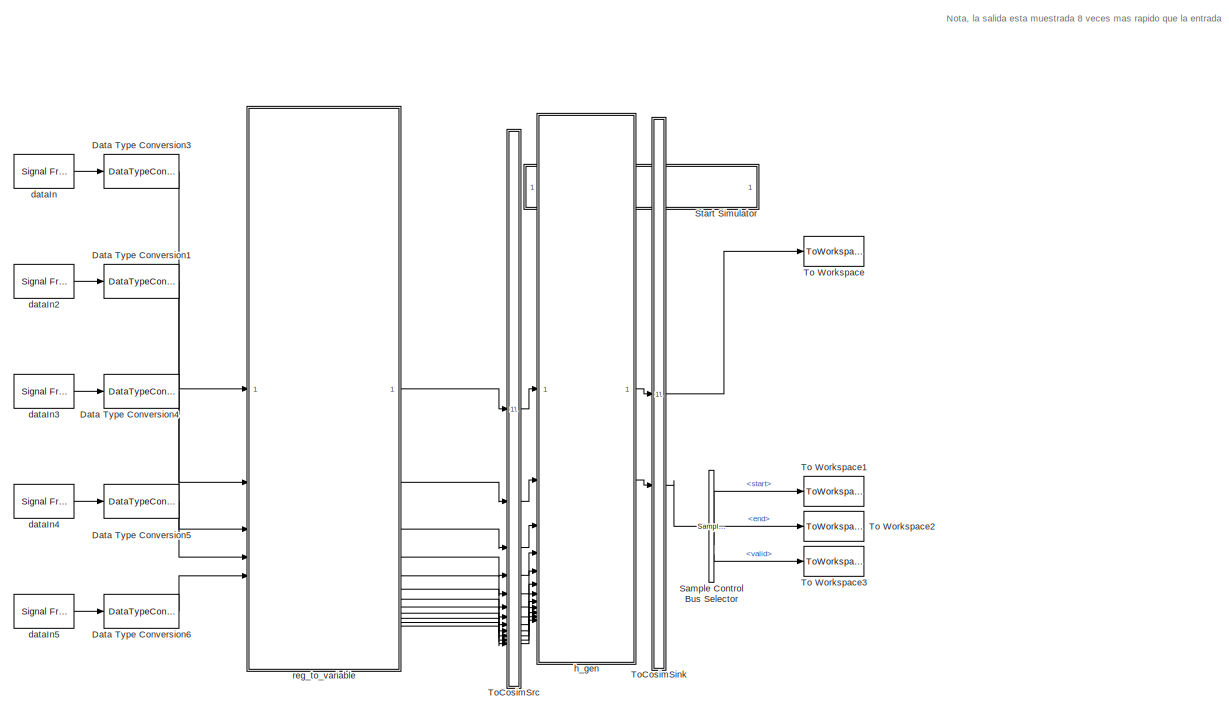
[diagram: root canvas - part 1/2, full width, top band]
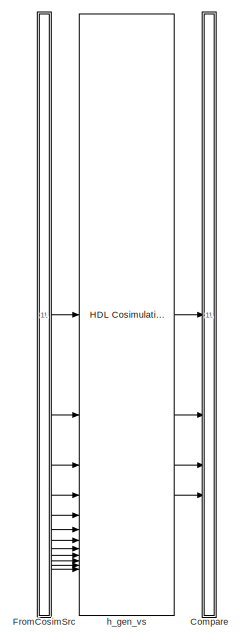
[diagram: root canvas - part 2/2, bottom center region]
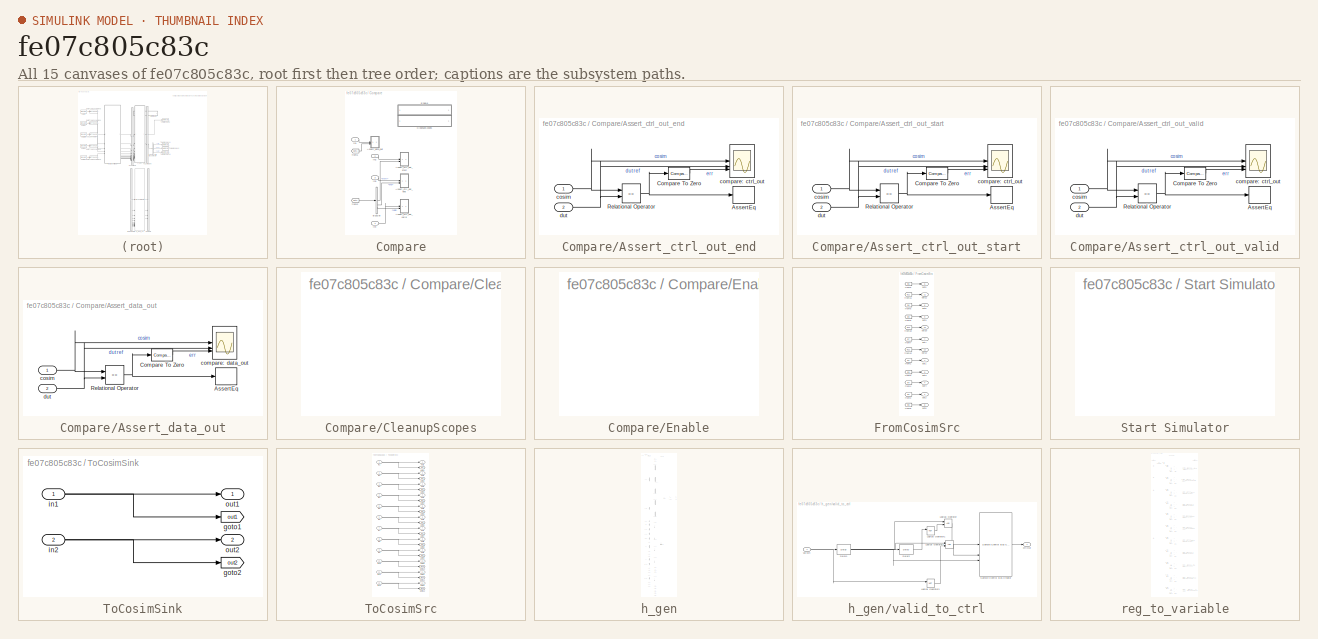
[diagram: thumbnail index - all 15 canvases of the model, root first then tree order]
MODEL slx_fe07c805c83c
KIND model
CONFIG AbsTol = auto
CONFIG EnableMultiTasking = off
CONFIG FixedStep = auto
CONFIG MaxStep = auto
CONFIG MinStep = auto
CONFIG RelTol = 1e-3
CONFIG SampleTimeConstraint = Unconstrained
CONFIG SolverName = VariableStepAuto
CONFIG StartTime = 0.0
CONFIG StopTime = 10.0
BLOCK [SubSystem] Compare
BLOCK [SubSystem] Compare/Assert_ctrl_out_end
  LibrarySourceBlock = hdlmdlgenlib/AssertEq
BLOCK [Assertion] Compare/Assert_ctrl_out_end/AssertEq
BLOCK [Reference] Compare/Assert_ctrl_out_end/Compare To Zero  REF=simulink/Logic and Bit
Operations/Compare
To Zero
  SourceBlock = simulink/Logic and Bit\nOperations/Compare\nTo Zero
  SourceType = Compare To Zero
BLOCK [RelationalOperator] Compare/Assert_ctrl_out_end/Relational Operator
  InputSameDT = off
  Operator = ==
  OutDataTypeStr = boolean
BLOCK [Scope] Compare/Assert_ctrl_out_end/compare: ctrl_out
  Floating = off
  NumInputPorts = 3
  ScopeSpecificationString = Simulink.scopes.TimeScopeBlockCfg('CurrentConfiguration', extmgr.ConfigurationSet(extmgr.Configuration('Core','General UI',true,'MessageLogAutoOpenMode','for warn/fail messages','ShowCloseAll',true,'ShowBringAllForward',true),extmgr.Configuration('Core','Source UI',true,'PlaybackToolbar',true),extmgr.Configuration('Sources','WiredSimulink',true,'PointsPerSignal',50000,'DataLoggingDecimation','1','...<+3551ch>  <repeated x3 — deduplicated; at blocks: compare: ctrl_out, compare: data_out>
BLOCK [Inport] Compare/Assert_ctrl_out_end/cosim
BLOCK [Inport] Compare/Assert_ctrl_out_end/dut
  Port = 2
BLOCK [SubSystem] Compare/Assert_ctrl_out_start
  LibrarySourceBlock = hdlmdlgenlib/AssertEq
BLOCK [Assertion] Compare/Assert_ctrl_out_start/AssertEq
BLOCK [Reference] Compare/Assert_ctrl_out_start/Compare To Zero  REF=simulink/Logic and Bit
Operations/Compare
To Zero
  SourceBlock = simulink/Logic and Bit\nOperations/Compare\nTo Zero
  SourceType = Compare To Zero
BLOCK [RelationalOperator] Compare/Assert_ctrl_out_start/Relational Operator
  InputSameDT = off
  Operator = ==
  OutDataTypeStr = boolean
BLOCK [Scope] Compare/Assert_ctrl_out_start/compare: ctrl_out
  Floating = off
  NumInputPorts = 3
  ScopeSpecificationString = Simulink.scopes.TimeScopeBlockCfg('CurrentConfiguration', extmgr.ConfigurationSet(extmgr.Configuration('Core','General UI',true,'MessageLogAutoOpenMode','for warn/fail messages','ShowCloseAll',true,'ShowBringAllForward',true),extmgr.Configuration('Core','Source UI',true,'PlaybackToolbar',true),extmgr.Configuration('Sources','WiredSimulink',true,'PointsPerSignal',50000,'DataLoggingDecimation','1','...<+3577ch>
BLOCK [Inport] Compare/Assert_ctrl_out_start/cosim
BLOCK [Inport] Compare/Assert_ctrl_out_start/dut
  Port = 2
BLOCK [SubSystem] Compare/Assert_ctrl_out_valid
  LibrarySourceBlock = hdlmdlgenlib/AssertEq
BLOCK [Assertion] Compare/Assert_ctrl_out_valid/AssertEq
BLOCK [Reference] Compare/Assert_ctrl_out_valid/Compare To Zero  REF=simulink/Logic and Bit
Operations/Compare
To Zero
  SourceBlock = simulink/Logic and Bit\nOperations/Compare\nTo Zero
  SourceType = Compare To Zero
BLOCK [RelationalOperator] Compare/Assert_ctrl_out_valid/Relational Operator
  InputSameDT = off
  Operator = ==
  OutDataTypeStr = boolean
BLOCK [Scope] Compare/Assert_ctrl_out_valid/compare: ctrl_out
  Floating = off
  NumInputPorts = 3
BLOCK [Inport] Compare/Assert_ctrl_out_valid/cosim
BLOCK [Inport] Compare/Assert_ctrl_out_valid/dut
  Port = 2
BLOCK [SubSystem] Compare/Assert_data_out
  LibrarySourceBlock = hdlmdlgenlib/AssertEq
BLOCK [Assertion] Compare/Assert_data_out/AssertEq
BLOCK [Reference] Compare/Assert_data_out/Compare To Zero  REF=simulink/Logic and Bit
Operations/Compare
To Zero
  SourceBlock = simulink/Logic and Bit\nOperations/Compare\nTo Zero
  SourceType = Compare To Zero
BLOCK [RelationalOperator] Compare/Assert_data_out/Relational Operator
  InputSameDT = off
  Operator = ==
  OutDataTypeStr = boolean
BLOCK [Scope] Compare/Assert_data_out/compare: data_out
  Floating = off
  NumInputPorts = 3
BLOCK [Inport] Compare/Assert_data_out/cosim
BLOCK [Inport] Compare/Assert_data_out/dut
  Port = 2
BLOCK [BusSelector] Compare/BusSel
  OutputSignals = start,end,valid
BLOCK [SubSystem] Compare/CleanupScopes
  OpenFcn = blkName = gcb; %self block\nidx = regexp(blkName, '/CleanupScopes$', 'once');\nblkParent = blkName(1:idx-1);\nblks=find_system(blkParent, 'LookUnderMasks', 'all','blocktype', 'Scope');\nfor itr = 1:length(blks)\n	 hScopeCfg = get_param(blks{itr},'ScopeConfiguration');\n	 hScopeCfg.Visible = ~ hScopeCfg.Visible;\nend\ndrawnow;
BLOCK [SubSystem] Compare/Enable
  OpenFcn = blkName = gcb;\nidx = regexp(blkName, '/Enable$', 'once');\nblkParent = blkName(1:idx-1);\nblks=find_system(blkParent, 'LookUnderMasks', 'all','blocktype', 'Assertion');\ne = get_param(blks{1}, 'Enabled');\nif strcmp(e, 'on'), f= 'off';, else, f = 'on';, end\nfor ii=1:length(blks), set_param(blks{ii}, 'Enabled', f);, end\nset_param(gcb, 'MaskDisplay',['fprintf(message(''hdlcoder:cosim:vnl_dblclick_assert...<+47ch>
BLOCK [From] Compare/from1
  GotoTag = out1
  TagVisibility = global
BLOCK [From] Compare/from2
  GotoTag = out2
  TagVisibility = global
BLOCK [Inport] Compare/in1
BLOCK [Inport] Compare/in2
  Port = 2
BLOCK [Inport] Compare/in3
  Port = 3
BLOCK [Inport] Compare/in4
  Port = 4
BLOCK [DataTypeConversion] Data Type Conversion1
  OutDataTypeStr = uint32
  RndMeth = Floor
  SaturateOnIntegerOverflow = off
BLOCK [DataTypeConversion] Data Type Conversion3
  OutDataTypeStr = boolean
  RndMeth = Floor
  SaturateOnIntegerOverflow = off
BLOCK [DataTypeConversion] Data Type Conversion4
  OutDataTypeStr = uint32
  RndMeth = Floor
  SaturateOnIntegerOverflow = off
BLOCK [DataTypeConversion] Data Type Conversion5
  OutDataTypeStr = uint32
  RndMeth = Floor
  SaturateOnIntegerOverflow = off
BLOCK [DataTypeConversion] Data Type Conversion6
  OutDataTypeStr = uint32
  RndMeth = Floor
  SaturateOnIntegerOverflow = off
BLOCK [SubSystem] FromCosimSrc
BLOCK [From] FromCosimSrc/from1
  GotoTag = in1
  TagVisibility = global
BLOCK [From] FromCosimSrc/from10
  GotoTag = in10
  TagVisibility = global
BLOCK [From] FromCosimSrc/from11
  GotoTag = in11
  TagVisibility = global
BLOCK [From] FromCosimSrc/from12
  GotoTag = in12
  TagVisibility = global
BLOCK [From] FromCosimSrc/from2
  GotoTag = in2
  TagVisibility = global
BLOCK [From] FromCosimSrc/from3
  GotoTag = in3
  TagVisibility = global
BLOCK [From] FromCosimSrc/from4
  GotoTag = in4
  TagVisibility = global
BLOCK [From] FromCosimSrc/from5
  GotoTag = in5
  TagVisibility = global
BLOCK [From] FromCosimSrc/from6
  GotoTag = in6
  TagVisibility = global
BLOCK [From] FromCosimSrc/from7
  GotoTag = in7
  TagVisibility = global
BLOCK [From] FromCosimSrc/from8
  GotoTag = in8
  TagVisibility = global
BLOCK [From] FromCosimSrc/from9
  GotoTag = in9
  TagVisibility = global
BLOCK [Outport] FromCosimSrc/out1
BLOCK [Outport] FromCosimSrc/out10
  Port = 10
BLOCK [Outport] FromCosimSrc/out11
  Port = 11
BLOCK [Outport] FromCosimSrc/out12
  Port = 12
BLOCK [Outport] FromCosimSrc/out2
  Port = 2
BLOCK [Outport] FromCosimSrc/out3
  Port = 3
BLOCK [Outport] FromCosimSrc/out4
  Port = 4
BLOCK [Outport] FromCosimSrc/out5
  Port = 5
BLOCK [Outport] FromCosimSrc/out6
  Port = 6
BLOCK [Outport] FromCosimSrc/out7
  Port = 7
BLOCK [Outport] FromCosimSrc/out8
  Port = 8
BLOCK [Outport] FromCosimSrc/out9
  Port = 9
BLOCK [Reference] Sample Control Bus Selector  REF=whdlutilities/Sample Control
Bus Selector
  SourceBlock = whdlutilities/Sample Control\nBus Selector
BLOCK [SubSystem] Start Simulator
  OpenFcn = cosimDirName = pwd;\ncd 'hdl_prj/hdlsrc/HDLHeaderGen';\n[s,r] = system('vivado -mode batch -source gm_HDLHeaderGen_vs.tcl','-echo');\ncd (cosimDirName);\nclear cosimDirName;\nif s\n   error('Failed to create Vivado HDL design DLL using script gm_HDLHeaderGen_vs.tcl.');\nend
BLOCK [ToWorkspace] To Workspace
  MaxDataPoints = inf
  SampleTime = 1/(8*fs)
  Save2DSignal = 2-D array (concatenate along first dimension)
  VariableName = dataOut
BLOCK [ToWorkspace] To Workspace1
  MaxDataPoints = inf
  SampleTime = 1/(8*fs)
  Save2DSignal = 2-D array (concatenate along first dimension)
  VariableName = startOut
BLOCK [ToWorkspace] To Workspace2
  MaxDataPoints = inf
  SampleTime = 1/(8*fs)
  Save2DSignal = 2-D array (concatenate along first dimension)
  VariableName = endOut
BLOCK [ToWorkspace] To Workspace3
  MaxDataPoints = inf
  SampleTime = 1/(8*fs)
  Save2DSignal = 2-D array (concatenate along first dimension)
  VariableName = validOut
BLOCK [SubSystem] ToCosimSink
BLOCK [Goto] ToCosimSink/goto1
  GotoTag = out1
  TagVisibility = global
BLOCK [Goto] ToCosimSink/goto2
  GotoTag = out2
  TagVisibility = global
BLOCK [Inport] ToCosimSink/in1
BLOCK [Inport] ToCosimSink/in2
  Port = 2
BLOCK [Outport] ToCosimSink/out1
BLOCK [Outport] ToCosimSink/out2
  Port = 2
BLOCK [SubSystem] ToCosimSrc
BLOCK [Goto] ToCosimSrc/goto1
  GotoTag = in1
  TagVisibility = global
BLOCK [Goto] ToCosimSrc/goto10
  GotoTag = in10
  TagVisibility = global
BLOCK [Goto] ToCosimSrc/goto11
  GotoTag = in11
  TagVisibility = global
BLOCK [Goto] ToCosimSrc/goto12
  GotoTag = in12
  TagVisibility = global
BLOCK [Goto] ToCosimSrc/goto2
  GotoTag = in2
  TagVisibility = global
BLOCK [Goto] ToCosimSrc/goto3
  GotoTag = in3
  TagVisibility = global
BLOCK [Goto] ToCosimSrc/goto4
  GotoTag = in4
  TagVisibility = global
BLOCK [Goto] ToCosimSrc/goto5
  GotoTag = in5
  TagVisibility = global
BLOCK [Goto] ToCosimSrc/goto6
  GotoTag = in6
  TagVisibility = global
BLOCK [Goto] ToCosimSrc/goto7
  GotoTag = in7
  TagVisibility = global
BLOCK [Goto] ToCosimSrc/goto8
  GotoTag = in8
  TagVisibility = global
BLOCK [Goto] ToCosimSrc/goto9
  GotoTag = in9
  TagVisibility = global
BLOCK [Inport] ToCosimSrc/in1
BLOCK [Inport] ToCosimSrc/in10
  Port = 10
BLOCK [Inport] ToCosimSrc/in11
  Port = 11
BLOCK [Inport] ToCosimSrc/in12
  Port = 12
BLOCK [Inport] ToCosimSrc/in2
  Port = 2
BLOCK [Inport] ToCosimSrc/in3
  Port = 3
BLOCK [Inport] ToCosimSrc/in4
  Port = 4
BLOCK [Inport] ToCosimSrc/in5
  Port = 5
BLOCK [Inport] ToCosimSrc/in6
  Port = 6
BLOCK [Inport] ToCosimSrc/in7
  Port = 7
BLOCK [Inport] ToCosimSrc/in8
  Port = 8
BLOCK [Inport] ToCosimSrc/in9
  Port = 9
BLOCK [Outport] ToCosimSrc/out1
BLOCK [Outport] ToCosimSrc/out10
  Port = 10
BLOCK [Outport] ToCosimSrc/out11
  Port = 11
BLOCK [Outport] ToCosimSrc/out12
  Port = 12
BLOCK [Outport] ToCosimSrc/out2
  Port = 2
BLOCK [Outport] ToCosimSrc/out3
  Port = 3
BLOCK [Outport] ToCosimSrc/out4
  Port = 4
BLOCK [Outport] ToCosimSrc/out5
  Port = 5
BLOCK [Outport] ToCosimSrc/out6
  Port = 6
BLOCK [Outport] ToCosimSrc/out7
  Port = 7
BLOCK [Outport] ToCosimSrc/out8
  Port = 8
BLOCK [Outport] ToCosimSrc/out9
  Port = 9
BLOCK [Reference] dataIn  REF=dspsrcs4/Signal From
Workspace
  SourceBlock = dspsrcs4/Signal From\nWorkspace
  SourceType = Signal From Workspace
BLOCK [Reference] dataIn2  REF=dspsrcs4/Signal From
Workspace
  SourceBlock = dspsrcs4/Signal From\nWorkspace
  SourceType = Signal From Workspace
BLOCK [Reference] dataIn3  REF=dspsrcs4/Signal From
Workspace
  SourceBlock = dspsrcs4/Signal From\nWorkspace
  SourceType = Signal From Workspace
BLOCK [Reference] dataIn4  REF=dspsrcs4/Signal From
Workspace
  SourceBlock = dspsrcs4/Signal From\nWorkspace
  SourceType = Signal From Workspace
BLOCK [Reference] dataIn5  REF=dspsrcs4/Signal From
Workspace
  SourceBlock = dspsrcs4/Signal From\nWorkspace
  SourceType = Signal From Workspace
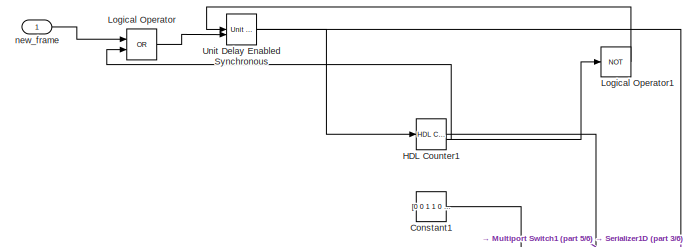
[diagram: h_gen - part 1/6, top left region]
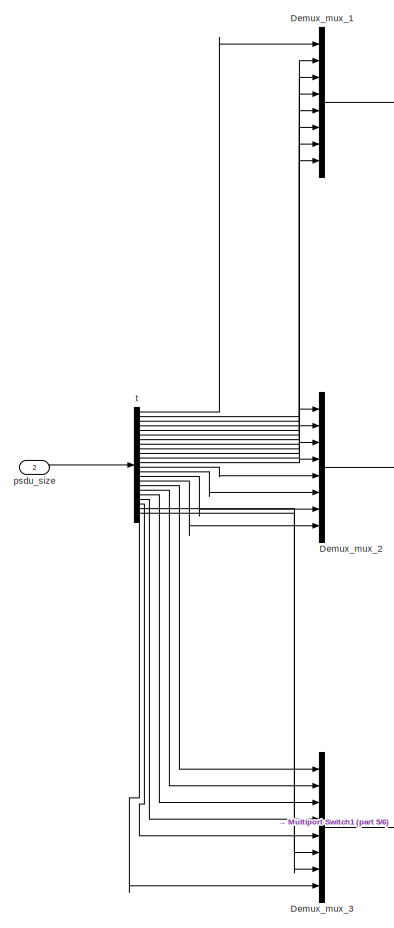
[diagram: h_gen - part 2/6, top left region]
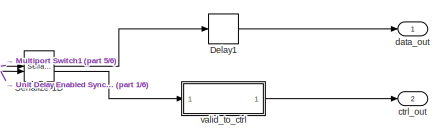
[diagram: h_gen - part 3/6, top right region]
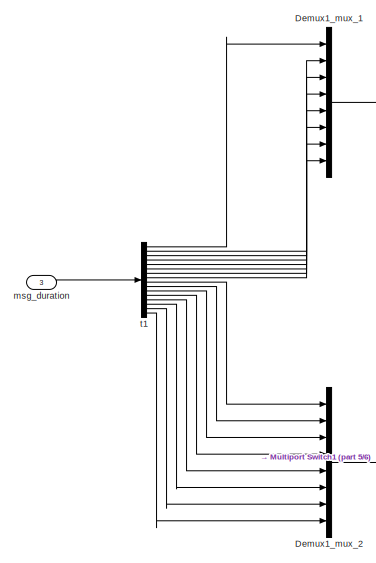
[diagram: h_gen - part 4/6, middle left region]
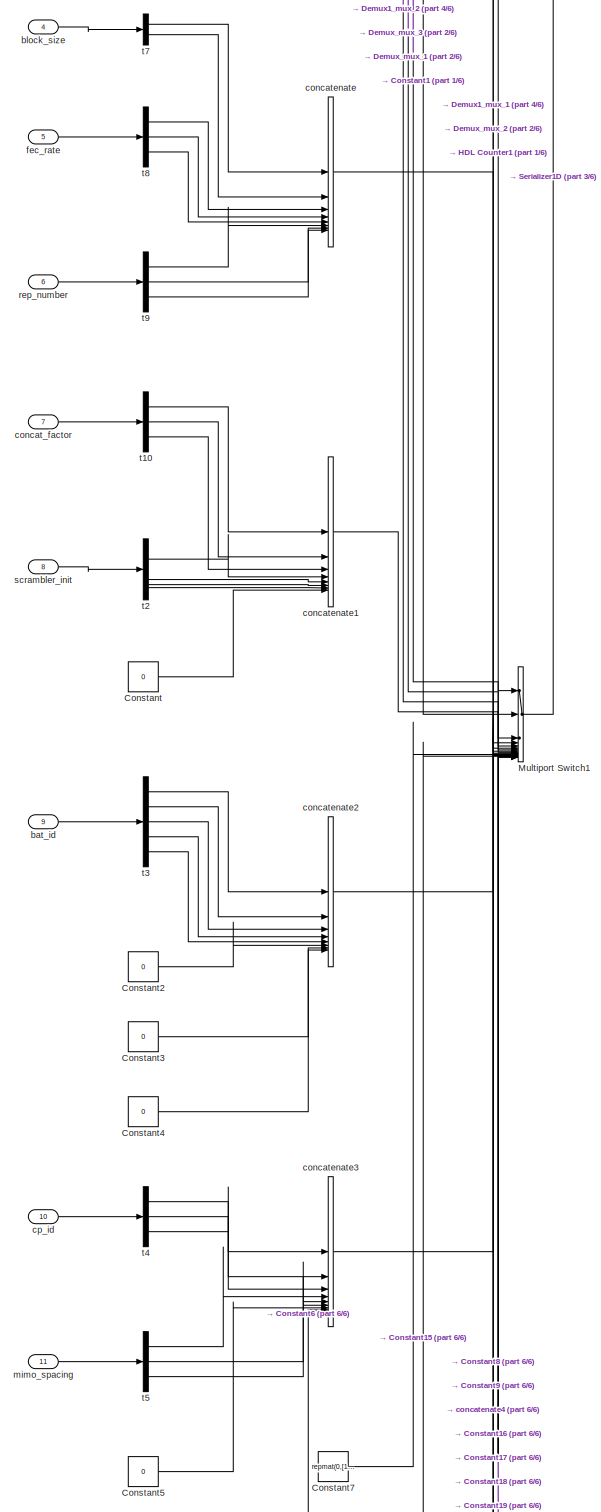
[diagram: h_gen - part 5/6, central region]
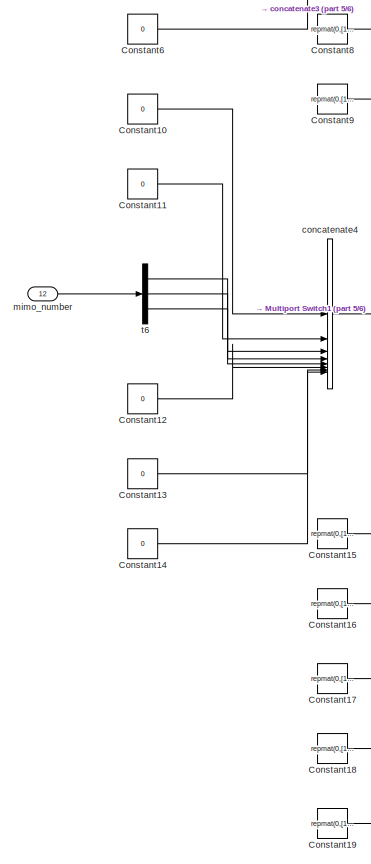
[diagram: h_gen - part 6/6, bottom left region]
BLOCK [SubSystem] h_gen
BLOCK [Constant] h_gen/Constant
  OutDataTypeStr = boolean
  SampleTime = 1
  Value = 0
BLOCK [Constant] h_gen/Constant1
  OutDataTypeStr = boolean
  SampleTime = 1
  Value = [0 0 1 1 0 0 0 0]
  VectorParams1D = off
BLOCK [Constant] h_gen/Constant10
  OutDataTypeStr = boolean
  SampleTime = 1
  Value = 0
BLOCK [Constant] h_gen/Constant11
  OutDataTypeStr = boolean
  SampleTime = 1
  Value = 0
BLOCK [Constant] h_gen/Constant12
  OutDataTypeStr = boolean
  SampleTime = 1
  Value = 0
BLOCK [Constant] h_gen/Constant13
  OutDataTypeStr = boolean
  SampleTime = 1
  Value = 0
BLOCK [Constant] h_gen/Constant14
  OutDataTypeStr = boolean
  SampleTime = 1
  Value = 0
BLOCK [Constant] h_gen/Constant15
  OutDataTypeStr = boolean
  SampleTime = 1
  Value = repmat(0,[1  8])
  VectorParams1D = off
BLOCK [Constant] h_gen/Constant16
  OutDataTypeStr = boolean
  SampleTime = 1
  Value = repmat(0,[1  8])
  VectorParams1D = off
BLOCK [Constant] h_gen/Constant17
  OutDataTypeStr = boolean
  SampleTime = 1
  Value = repmat(0,[1  8])
  VectorParams1D = off
BLOCK [Constant] h_gen/Constant18
  OutDataTypeStr = boolean
  SampleTime = 1
  Value = repmat(0,[1  8])
  VectorParams1D = off
BLOCK [Constant] h_gen/Constant19
  OutDataTypeStr = boolean
  SampleTime = 1
  Value = repmat(0,[1  8])
  VectorParams1D = off
BLOCK [Constant] h_gen/Constant2
  OutDataTypeStr = boolean
  SampleTime = 1
  Value = 0
BLOCK [Constant] h_gen/Constant3
  OutDataTypeStr = boolean
  SampleTime = 1
  Value = 0
BLOCK [Constant] h_gen/Constant4
  OutDataTypeStr = boolean
  SampleTime = 1
  Value = 0
BLOCK [Constant] h_gen/Constant5
  OutDataTypeStr = boolean
  SampleTime = 1
  Value = 0
BLOCK [Constant] h_gen/Constant6
  OutDataTypeStr = boolean
  SampleTime = 1
  Value = 0
BLOCK [Constant] h_gen/Constant7
  OutDataTypeStr = boolean
  SampleTime = 1
  Value = repmat(0,[1  8])
  VectorParams1D = off
BLOCK [Constant] h_gen/Constant8
  OutDataTypeStr = boolean
  SampleTime = 1
  Value = repmat(0,[1  8])
  VectorParams1D = off
BLOCK [Constant] h_gen/Constant9
  OutDataTypeStr = boolean
  SampleTime = 1
  Value = repmat(0,[1  8])
  VectorParams1D = off
BLOCK [Delay] h_gen/Delay1
  DelayLength = double(1)
  InitialCondition = 0
  InputPortMap = u0
  SampleTime = 0.125
BLOCK [Mux] h_gen/Demux1_mux_1
  DisplayOption = bar
  Inputs = 8
BLOCK [Mux] h_gen/Demux1_mux_2
  DisplayOption = bar
  Inputs = 8
BLOCK [Mux] h_gen/Demux_mux_1
  DisplayOption = bar
  Inputs = 8
BLOCK [Mux] h_gen/Demux_mux_2
  DisplayOption = bar
  Inputs = 8
BLOCK [Mux] h_gen/Demux_mux_3
  DisplayOption = bar
  Inputs = 8
BLOCK [Reference] h_gen/HDL Counter1  REF=hdlsllib/Sources/HDL Counter
  SourceBlock = hdlsllib/Sources/HDL Counter
  SourceType = HDL Counter
BLOCK [Logic] h_gen/Logical Operator
  AllPortsSameDT = off
  Operator = OR
  OutDataTypeStr = boolean
  SampleTime = 1
BLOCK [Logic] h_gen/Logical Operator1
  AllPortsSameDT = off
  Inputs = 1
  Operator = NOT
  OutDataTypeStr = boolean
  SampleTime = 1
BLOCK [MultiPortSwitch] h_gen/Multiport Switch1
  DataPortOrder = Zero-based contiguous
  DiagnosticForDefault = None
  InputSameDT = off
  Inputs = 19
  SampleTime = 1
  SaturateOnIntegerOverflow = off
  zeroidx = on
BLOCK [Reference] h_gen/Serializer1D  REF=hdlsllib/HDL Operations/Serializer1D
  SourceBlock = hdlsllib/HDL Operations/Serializer1D
  SourceType = Serializer1D
BLOCK [Reference] h_gen/Unit Delay Enabled Synchronous  REF=hdlsllib/Discrete/Unit Delay Enabled
Synchronous
  SourceBlock = hdlsllib/Discrete/Unit Delay Enabled\nSynchronous
  SourceType = Unit Delay Enabled Synchronous
BLOCK [Inport] h_gen/bat_id
  OutDataTypeStr = boolean
  Port = 9
  PortDimensions = [1 5]
  SampleTime = 1
BLOCK [Inport] h_gen/block_size
  OutDataTypeStr = boolean
  Port = 4
  PortDimensions = [1 2]
  SampleTime = 1
BLOCK [Inport] h_gen/concat_factor
  OutDataTypeStr = boolean
  Port = 7
  PortDimensions = [1 3]
  SampleTime = 1
BLOCK [Concatenate] h_gen/concatenate
  ConcatenateDimension = 2
  Mode = Multidimensional array
  NumInputs = 8
BLOCK [Concatenate] h_gen/concatenate1
  ConcatenateDimension = 2
  Mode = Multidimensional array
  NumInputs = 8
BLOCK [Concatenate] h_gen/concatenate2
  ConcatenateDimension = 2
  Mode = Multidimensional array
  NumInputs = 8
BLOCK [Concatenate] h_gen/concatenate3
  ConcatenateDimension = 2
  Mode = Multidimensional array
  NumInputs = 8
BLOCK [Concatenate] h_gen/concatenate4
  ConcatenateDimension = 2
  Mode = Multidimensional array
  NumInputs = 8
BLOCK [Inport] h_gen/cp_id
  OutDataTypeStr = boolean
  Port = 10
  PortDimensions = [1 3]
  SampleTime = 1
BLOCK [Outport] h_gen/ctrl_out
  Port = 2
  VectorParamsAs1DForOutWhenUnconnected = off
BLOCK [Outport] h_gen/data_out
  SampleTime = 0.125
  VectorParamsAs1DForOutWhenUnconnected = off
BLOCK [Inport] h_gen/fec_rate
  OutDataTypeStr = boolean
  Port = 5
  PortDimensions = [1 3]
  SampleTime = 1
BLOCK [Inport] h_gen/mimo_number
  OutDataTypeStr = boolean
  Port = 12
  PortDimensions = [1 3]
  SampleTime = 1
BLOCK [Inport] h_gen/mimo_spacing
  OutDataTypeStr = boolean
  Port = 11
  PortDimensions = [1 3]
  SampleTime = 1
BLOCK [Inport] h_gen/msg_duration
  OutDataTypeStr = boolean
  Port = 3
  PortDimensions = [1 16]
  SampleTime = 1
BLOCK [Inport] h_gen/new_frame
  OutDataTypeStr = boolean
  PortDimensions = 1
  SampleTime = 1
BLOCK [Inport] h_gen/psdu_size
  OutDataTypeStr = boolean
  Port = 2
  PortDimensions = [1 24]
  SampleTime = 1
BLOCK [Inport] h_gen/rep_number
  OutDataTypeStr = boolean
  Port = 6
  PortDimensions = [1 3]
  SampleTime = 1
BLOCK [Inport] h_gen/scrambler_init
  OutDataTypeStr = boolean
  Port = 8
  PortDimensions = [1 4]
  SampleTime = 1
BLOCK [Demux] h_gen/t
  Outputs = 24
BLOCK [Demux] h_gen/t1
  Outputs = 16
BLOCK [Demux] h_gen/t10
  Outputs = 3
BLOCK [Demux] h_gen/t2
BLOCK [Demux] h_gen/t3
  Outputs = 5
BLOCK [Demux] h_gen/t4
  Outputs = 3
BLOCK [Demux] h_gen/t5
  Outputs = 3
BLOCK [Demux] h_gen/t6
  Outputs = 3
BLOCK [Demux] h_gen/t7
  Outputs = 2
BLOCK [Demux] h_gen/t8
  Outputs = 3
BLOCK [Demux] h_gen/t9
  Outputs = 3
BLOCK [SubSystem] h_gen/valid_to_ctrl
BLOCK [Delay] h_gen/valid_to_ctrl/Delay1
  DelayLength = 1
  InitialCondition = 0
  InputPortMap = u0
  UseCircularBuffer = on
  UserDataPersistent = on
BLOCK [Delay] h_gen/valid_to_ctrl/Delay2
  DelayLength = 1
  InitialCondition = 0
  InputPortMap = u0
  UseCircularBuffer = on
  UserDataPersistent = on
BLOCK [Logic] h_gen/valid_to_ctrl/Logical Operator
  AllPortsSameDT = off
  IconShape = distinctive
  OutDataTypeStr = boolean
BLOCK [Logic] h_gen/valid_to_ctrl/Logical Operator1
  AllPortsSameDT = off
  IconShape = distinctive
  Operator = NOT
  OutDataTypeStr = boolean
BLOCK [Logic] h_gen/valid_to_ctrl/Logical Operator2
  AllPortsSameDT = off
  IconShape = distinctive
  OutDataTypeStr = boolean
BLOCK [Logic] h_gen/valid_to_ctrl/Logical Operator3
  AllPortsSameDT = off
  IconShape = distinctive
  Operator = NOT
  OutDataTypeStr = boolean
BLOCK [Reference] h_gen/valid_to_ctrl/Sample Control Bus Creator  REF=whdlutilities/Sample Control
Bus Creator
  SourceBlock = whdlutilities/Sample Control\nBus Creator
  SourceType = Sample Control Bus Creator
BLOCK [Outport] h_gen/valid_to_ctrl/ctrlOut
  SampleTime = 0.125
BLOCK [Inport] h_gen/valid_to_ctrl/validIn
  OutDataTypeStr = boolean
  SampleTime = 0.125
BLOCK [Reference] h_gen_vs  REF=vivadosimlib/HDL Cosimulation
  SourceBlock = vivadosimlib/HDL Cosimulation
  SourceType = Simulink and Vivado Simulator Cosimulation
  UserDataPersistent = on
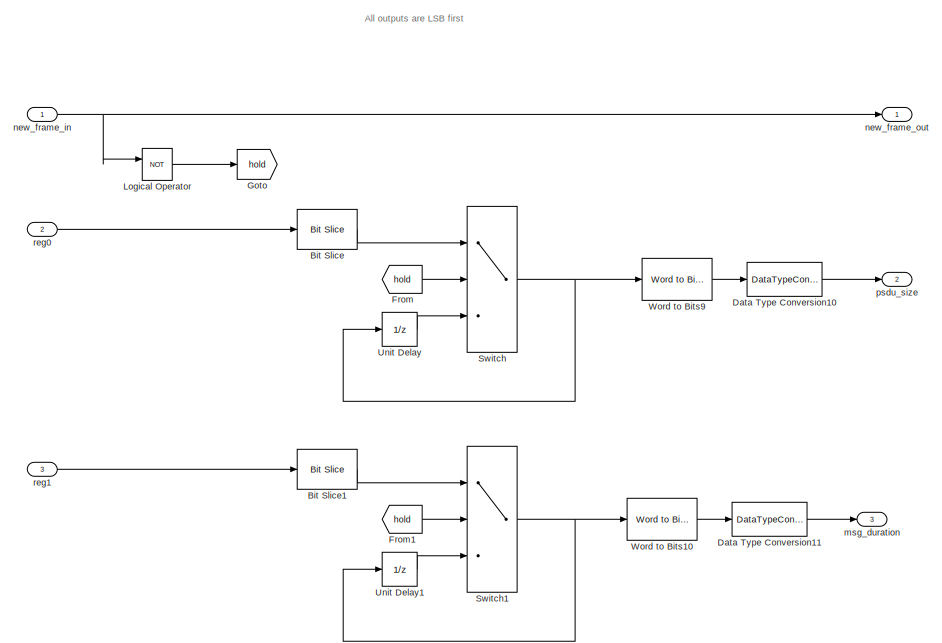
[diagram: reg_to_variable - part 1/3, full width, top band]
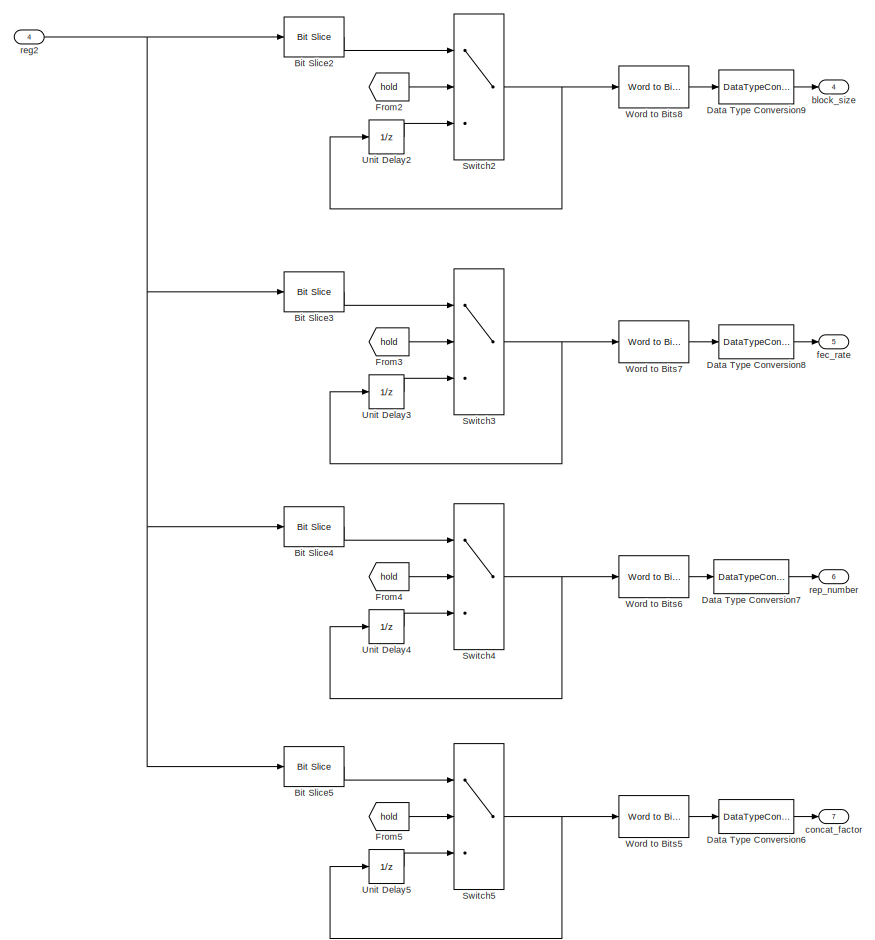
[diagram: reg_to_variable - part 2/3, full width, middle band]
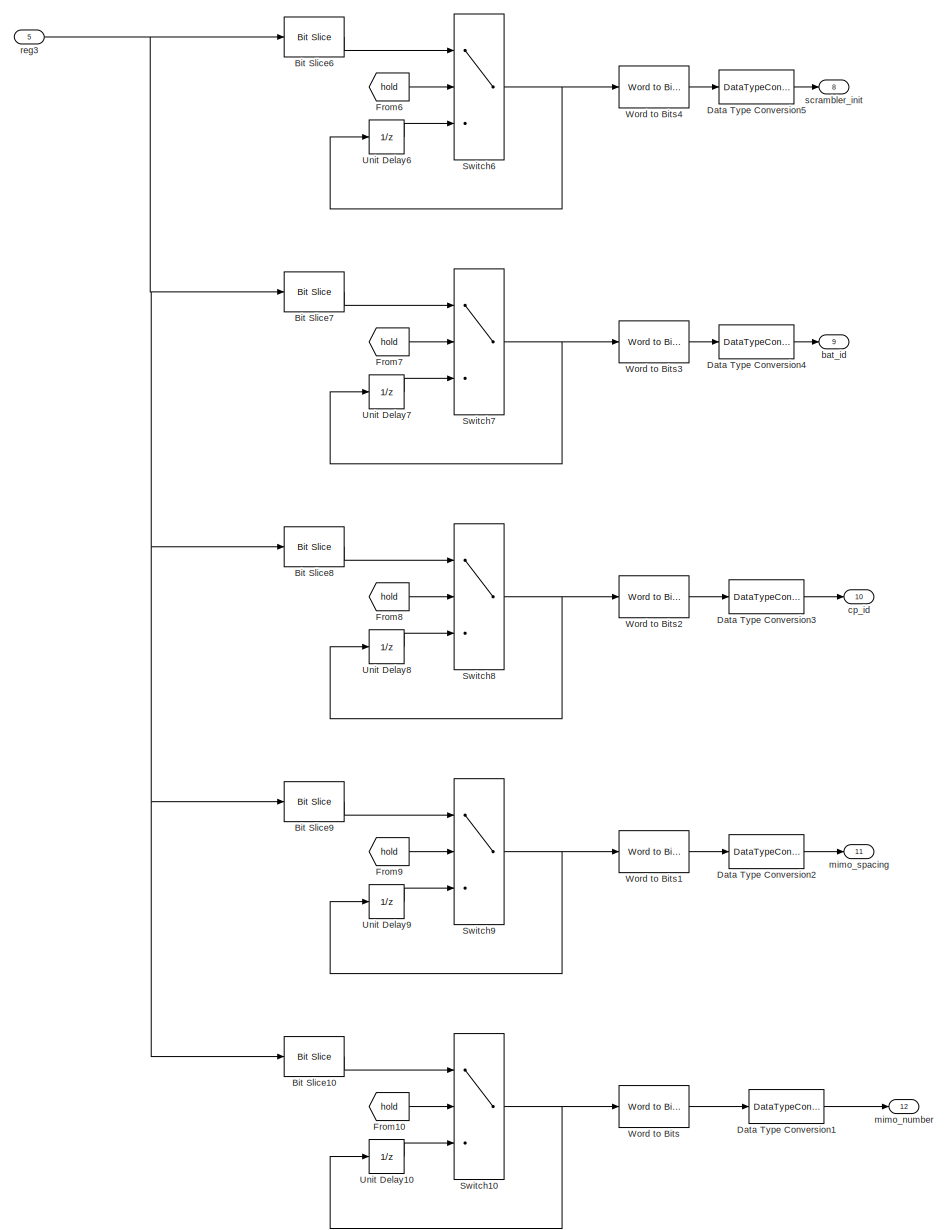
[diagram: reg_to_variable - part 3/3, full width, bottom band]
BLOCK [SubSystem] reg_to_variable
BLOCK [Reference] reg_to_variable/Bit Slice  REF=hdlsllib/Logic and Bit
Operations/Bit Slice
  SourceBlock = hdlsllib/Logic and Bit\nOperations/Bit Slice
  SourceType = Bit Slice
BLOCK [Reference] reg_to_variable/Bit Slice1  REF=hdlsllib/Logic and Bit
Operations/Bit Slice
  SourceBlock = hdlsllib/Logic and Bit\nOperations/Bit Slice
  SourceType = Bit Slice
BLOCK [Reference] reg_to_variable/Bit Slice10  REF=hdlsllib/Logic and Bit
Operations/Bit Slice
  SourceBlock = hdlsllib/Logic and Bit\nOperations/Bit Slice
  SourceType = Bit Slice
BLOCK [Reference] reg_to_variable/Bit Slice2  REF=hdlsllib/Logic and Bit
Operations/Bit Slice
  SourceBlock = hdlsllib/Logic and Bit\nOperations/Bit Slice
  SourceType = Bit Slice
BLOCK [Reference] reg_to_variable/Bit Slice3  REF=hdlsllib/Logic and Bit
Operations/Bit Slice
  SourceBlock = hdlsllib/Logic and Bit\nOperations/Bit Slice
  SourceType = Bit Slice
BLOCK [Reference] reg_to_variable/Bit Slice4  REF=hdlsllib/Logic and Bit
Operations/Bit Slice
  SourceBlock = hdlsllib/Logic and Bit\nOperations/Bit Slice
  SourceType = Bit Slice
BLOCK [Reference] reg_to_variable/Bit Slice5  REF=hdlsllib/Logic and Bit
Operations/Bit Slice
  SourceBlock = hdlsllib/Logic and Bit\nOperations/Bit Slice
  SourceType = Bit Slice
BLOCK [Reference] reg_to_variable/Bit Slice6  REF=hdlsllib/Logic and Bit
Operations/Bit Slice
  SourceBlock = hdlsllib/Logic and Bit\nOperations/Bit Slice
  SourceType = Bit Slice
BLOCK [Reference] reg_to_variable/Bit Slice7  REF=hdlsllib/Logic and Bit
Operations/Bit Slice
  SourceBlock = hdlsllib/Logic and Bit\nOperations/Bit Slice
  SourceType = Bit Slice
BLOCK [Reference] reg_to_variable/Bit Slice8  REF=hdlsllib/Logic and Bit
Operations/Bit Slice
  SourceBlock = hdlsllib/Logic and Bit\nOperations/Bit Slice
  SourceType = Bit Slice
BLOCK [Reference] reg_to_variable/Bit Slice9  REF=hdlsllib/Logic and Bit
Operations/Bit Slice
  SourceBlock = hdlsllib/Logic and Bit\nOperations/Bit Slice
  SourceType = Bit Slice
BLOCK [DataTypeConversion] reg_to_variable/Data Type Conversion1
  OutDataTypeStr = boolean
  RndMeth = Floor
  SaturateOnIntegerOverflow = off
BLOCK [DataTypeConversion] reg_to_variable/Data Type Conversion10
  OutDataTypeStr = boolean
  RndMeth = Floor
  SaturateOnIntegerOverflow = off
BLOCK [DataTypeConversion] reg_to_variable/Data Type Conversion11
  OutDataTypeStr = boolean
  RndMeth = Floor
  SaturateOnIntegerOverflow = off
BLOCK [DataTypeConversion] reg_to_variable/Data Type Conversion2
  OutDataTypeStr = boolean
  RndMeth = Floor
  SaturateOnIntegerOverflow = off
BLOCK [DataTypeConversion] reg_to_variable/Data Type Conversion3
  OutDataTypeStr = boolean
  RndMeth = Floor
  SaturateOnIntegerOverflow = off
BLOCK [DataTypeConversion] reg_to_variable/Data Type Conversion4
  OutDataTypeStr = boolean
  RndMeth = Floor
  SaturateOnIntegerOverflow = off
BLOCK [DataTypeConversion] reg_to_variable/Data Type Conversion5
  OutDataTypeStr = boolean
  RndMeth = Floor
  SaturateOnIntegerOverflow = off
BLOCK [DataTypeConversion] reg_to_variable/Data Type Conversion6
  OutDataTypeStr = boolean
  RndMeth = Floor
  SaturateOnIntegerOverflow = off
BLOCK [DataTypeConversion] reg_to_variable/Data Type Conversion7
  OutDataTypeStr = boolean
  RndMeth = Floor
  SaturateOnIntegerOverflow = off
BLOCK [DataTypeConversion] reg_to_variable/Data Type Conversion8
  OutDataTypeStr = boolean
  RndMeth = Floor
  SaturateOnIntegerOverflow = off
BLOCK [DataTypeConversion] reg_to_variable/Data Type Conversion9
  OutDataTypeStr = boolean
  RndMeth = Floor
  SaturateOnIntegerOverflow = off
BLOCK [From] reg_to_variable/From
  GotoTag = hold
BLOCK [From] reg_to_variable/From1
  GotoTag = hold
BLOCK [From] reg_to_variable/From10
  GotoTag = hold
BLOCK [From] reg_to_variable/From2
  GotoTag = hold
BLOCK [From] reg_to_variable/From3
  GotoTag = hold
BLOCK [From] reg_to_variable/From4
  GotoTag = hold
BLOCK [From] reg_to_variable/From5
  GotoTag = hold
BLOCK [From] reg_to_variable/From6
  GotoTag = hold
BLOCK [From] reg_to_variable/From7
  GotoTag = hold
BLOCK [From] reg_to_variable/From8
  GotoTag = hold
BLOCK [From] reg_to_variable/From9
  GotoTag = hold
BLOCK [Goto] reg_to_variable/Goto
  GotoTag = hold
BLOCK [Logic] reg_to_variable/Logical Operator
  AllPortsSameDT = off
  Operator = NOT
  OutDataTypeStr = boolean
BLOCK [Switch] reg_to_variable/Switch
  Criteria = u2 ~= 0
  InputSameDT = off
  SaturateOnIntegerOverflow = off
BLOCK [Switch] reg_to_variable/Switch1
  Criteria = u2 ~= 0
  InputSameDT = off
  SaturateOnIntegerOverflow = off
BLOCK [Switch] reg_to_variable/Switch10
  Criteria = u2 ~= 0
  InputSameDT = off
  SaturateOnIntegerOverflow = off
BLOCK [Switch] reg_to_variable/Switch2
  Criteria = u2 ~= 0
  InputSameDT = off
  SaturateOnIntegerOverflow = off
BLOCK [Switch] reg_to_variable/Switch3
  Criteria = u2 ~= 0
  InputSameDT = off
  SaturateOnIntegerOverflow = off
BLOCK [Switch] reg_to_variable/Switch4
  Criteria = u2 ~= 0
  InputSameDT = off
  SaturateOnIntegerOverflow = off
BLOCK [Switch] reg_to_variable/Switch5
  Criteria = u2 ~= 0
  InputSameDT = off
  SaturateOnIntegerOverflow = off
BLOCK [Switch] reg_to_variable/Switch6
  Criteria = u2 ~= 0
  InputSameDT = off
  SaturateOnIntegerOverflow = off
BLOCK [Switch] reg_to_variable/Switch7
  Criteria = u2 ~= 0
  InputSameDT = off
  SaturateOnIntegerOverflow = off
BLOCK [Switch] reg_to_variable/Switch8
  Criteria = u2 ~= 0
  InputSameDT = off
  SaturateOnIntegerOverflow = off
BLOCK [Switch] reg_to_variable/Switch9
  Criteria = u2 ~= 0
  InputSameDT = off
  SaturateOnIntegerOverflow = off
BLOCK [UnitDelay] reg_to_variable/Unit Delay
  HasFrameUpgradeWarning = on
  SampleTime = -1
BLOCK [UnitDelay] reg_to_variable/Unit Delay1
  HasFrameUpgradeWarning = on
  SampleTime = -1
BLOCK [UnitDelay] reg_to_variable/Unit Delay10
  HasFrameUpgradeWarning = on
  SampleTime = -1
BLOCK [UnitDelay] reg_to_variable/Unit Delay2
  HasFrameUpgradeWarning = on
  SampleTime = -1
BLOCK [UnitDelay] reg_to_variable/Unit Delay3
  HasFrameUpgradeWarning = on
  SampleTime = -1
BLOCK [UnitDelay] reg_to_variable/Unit Delay4
  HasFrameUpgradeWarning = on
  SampleTime = -1
BLOCK [UnitDelay] reg_to_variable/Unit Delay5
  HasFrameUpgradeWarning = on
  SampleTime = -1
BLOCK [UnitDelay] reg_to_variable/Unit Delay6
  HasFrameUpgradeWarning = on
  SampleTime = -1
BLOCK [UnitDelay] reg_to_variable/Unit Delay7
  HasFrameUpgradeWarning = on
  SampleTime = -1
BLOCK [UnitDelay] reg_to_variable/Unit Delay8
  HasFrameUpgradeWarning = on
  SampleTime = -1
BLOCK [UnitDelay] reg_to_variable/Unit Delay9
  HasFrameUpgradeWarning = on
  SampleTime = -1
BLOCK [Reference] reg_to_variable/Word to Bits  REF=hdlsllib/Logic and Bit
Operations/Word to Bits
  SourceBlock = hdlsllib/Logic and Bit\nOperations/Word to Bits
  SourceType = Word to Bits
BLOCK [Reference] reg_to_variable/Word to Bits1  REF=hdlsllib/Logic and Bit
Operations/Word to Bits
  SourceBlock = hdlsllib/Logic and Bit\nOperations/Word to Bits
  SourceType = Word to Bits
BLOCK [Reference] reg_to_variable/Word to Bits10  REF=hdlsllib/Logic and Bit
Operations/Word to Bits
  SourceBlock = hdlsllib/Logic and Bit\nOperations/Word to Bits
  SourceType = Word to Bits
BLOCK [Reference] reg_to_variable/Word to Bits2  REF=hdlsllib/Logic and Bit
Operations/Word to Bits
  SourceBlock = hdlsllib/Logic and Bit\nOperations/Word to Bits
  SourceType = Word to Bits
BLOCK [Reference] reg_to_variable/Word to Bits3  REF=hdlsllib/Logic and Bit
Operations/Word to Bits
  SourceBlock = hdlsllib/Logic and Bit\nOperations/Word to Bits
  SourceType = Word to Bits
BLOCK [Reference] reg_to_variable/Word to Bits4  REF=hdlsllib/Logic and Bit
Operations/Word to Bits
  SourceBlock = hdlsllib/Logic and Bit\nOperations/Word to Bits
  SourceType = Word to Bits
BLOCK [Reference] reg_to_variable/Word to Bits5  REF=hdlsllib/Logic and Bit
Operations/Word to Bits
  SourceBlock = hdlsllib/Logic and Bit\nOperations/Word to Bits
  SourceType = Word to Bits
BLOCK [Reference] reg_to_variable/Word to Bits6  REF=hdlsllib/Logic and Bit
Operations/Word to Bits
  SourceBlock = hdlsllib/Logic and Bit\nOperations/Word to Bits
  SourceType = Word to Bits
BLOCK [Reference] reg_to_variable/Word to Bits7  REF=hdlsllib/Logic and Bit
Operations/Word to Bits
  SourceBlock = hdlsllib/Logic and Bit\nOperations/Word to Bits
  SourceType = Word to Bits
BLOCK [Reference] reg_to_variable/Word to Bits8  REF=hdlsllib/Logic and Bit
Operations/Word to Bits
  SourceBlock = hdlsllib/Logic and Bit\nOperations/Word to Bits
  SourceType = Word to Bits
BLOCK [Reference] reg_to_variable/Word to Bits9  REF=hdlsllib/Logic and Bit
Operations/Word to Bits
  SourceBlock = hdlsllib/Logic and Bit\nOperations/Word to Bits
  SourceType = Word to Bits
BLOCK [Outport] reg_to_variable/bat_id
  Port = 9
  VectorParamsAs1DForOutWhenUnconnected = off
BLOCK [Outport] reg_to_variable/block_size
  Port = 4
  VectorParamsAs1DForOutWhenUnconnected = off
BLOCK [Outport] reg_to_variable/concat_factor
  Port = 7
  VectorParamsAs1DForOutWhenUnconnected = off
BLOCK [Outport] reg_to_variable/cp_id
  Port = 10
  VectorParamsAs1DForOutWhenUnconnected = off
BLOCK [Outport] reg_to_variable/fec_rate
  Port = 5
  VectorParamsAs1DForOutWhenUnconnected = off
BLOCK [Outport] reg_to_variable/mimo_number
  Port = 12
  VectorParamsAs1DForOutWhenUnconnected = off
BLOCK [Outport] reg_to_variable/mimo_spacing
  Port = 11
  VectorParamsAs1DForOutWhenUnconnected = off
BLOCK [Outport] reg_to_variable/msg_duration
  Port = 3
  VectorParamsAs1DForOutWhenUnconnected = off
BLOCK [Inport] reg_to_variable/new_frame_in
BLOCK [Outport] reg_to_variable/new_frame_out
  VectorParamsAs1DForOutWhenUnconnected = off
BLOCK [Outport] reg_to_variable/psdu_size
  Port = 2
  VectorParamsAs1DForOutWhenUnconnected = off
BLOCK [Inport] reg_to_variable/reg0
  Port = 2
BLOCK [Inport] reg_to_variable/reg1
  Port = 3
BLOCK [Inport] reg_to_variable/reg2
  Port = 4
BLOCK [Inport] reg_to_variable/reg3
  Port = 5
BLOCK [Outport] reg_to_variable/rep_number
  Port = 6
  VectorParamsAs1DForOutWhenUnconnected = off
BLOCK [Outport] reg_to_variable/scrambler_init
  Port = 8
  VectorParamsAs1DForOutWhenUnconnected = off
ANNOTATION (root): Nota, la salida esta muestrada 8 veces mas rapido que la entrada
ANNOTATION reg_to_variable: All outputs are LSB first
LINE Compare/Assert_ctrl_out_end/Compare To Zero:1 -> Compare/Assert_ctrl_out_end/compare: ctrl_out:3
NET Compare/Assert_ctrl_out_end/Relational Operator:1 -> Compare/Assert_ctrl_out_end/AssertEq:1, Compare/Assert_ctrl_out_end/Compare To Zero:1
NET Compare/Assert_ctrl_out_end/cosim:1 -> Compare/Assert_ctrl_out_end/Relational Operator:1, Compare/Assert_ctrl_out_end/compare: ctrl_out:1
NET Compare/Assert_ctrl_out_end/dut:1 -> Compare/Assert_ctrl_out_end/Relational Operator:2, Compare/Assert_ctrl_out_end/compare: ctrl_out:2
LINE Compare/Assert_ctrl_out_start/Compare To Zero:1 -> Compare/Assert_ctrl_out_start/compare: ctrl_out:3
NET Compare/Assert_ctrl_out_start/Relational Operator:1 -> Compare/Assert_ctrl_out_start/AssertEq:1, Compare/Assert_ctrl_out_start/Compare To Zero:1
NET Compare/Assert_ctrl_out_start/cosim:1 -> Compare/Assert_ctrl_out_start/Relational Operator:1, Compare/Assert_ctrl_out_start/compare: ctrl_out:1
NET Compare/Assert_ctrl_out_start/dut:1 -> Compare/Assert_ctrl_out_start/Relational Operator:2, Compare/Assert_ctrl_out_start/compare: ctrl_out:2
LINE Compare/Assert_ctrl_out_valid/Compare To Zero:1 -> Compare/Assert_ctrl_out_valid/compare: ctrl_out:3
NET Compare/Assert_ctrl_out_valid/Relational Operator:1 -> Compare/Assert_ctrl_out_valid/AssertEq:1, Compare/Assert_ctrl_out_valid/Compare To Zero:1
NET Compare/Assert_ctrl_out_valid/cosim:1 -> Compare/Assert_ctrl_out_valid/Relational Operator:1, Compare/Assert_ctrl_out_valid/compare: ctrl_out:1
NET Compare/Assert_ctrl_out_valid/dut:1 -> Compare/Assert_ctrl_out_valid/Relational Operator:2, Compare/Assert_ctrl_out_valid/compare: ctrl_out:2
LINE Compare/Assert_data_out/Compare To Zero:1 -> Compare/Assert_data_out/compare: data_out:3
NET Compare/Assert_data_out/Relational Operator:1 -> Compare/Assert_data_out/AssertEq:1, Compare/Assert_data_out/Compare To Zero:1
NET Compare/Assert_data_out/cosim:1 -> Compare/Assert_data_out/Relational Operator:1, Compare/Assert_data_out/compare: data_out:1
NET Compare/Assert_data_out/dut:1 -> Compare/Assert_data_out/Relational Operator:2, Compare/Assert_data_out/compare: data_out:2
LINE Compare/BusSel:1 -> Compare/Assert_ctrl_out_start:2
LINE Compare/BusSel:2 -> Compare/Assert_ctrl_out_end:2
LINE Compare/BusSel:3 -> Compare/Assert_ctrl_out_valid:2
LINE Compare/from1:1 -> Compare/Assert_data_out:2
LINE Compare/from2:1 -> Compare/BusSel:1
LINE Compare/in1:1 -> Compare/Assert_data_out:1
LINE Compare/in2:1 -> Compare/Assert_ctrl_out_start:1
LINE Compare/in3:1 -> Compare/Assert_ctrl_out_end:1
LINE Compare/in4:1 -> Compare/Assert_ctrl_out_valid:1
LINE Data Type Conversion1:1 -> reg_to_variable:2
LINE Data Type Conversion3:1 -> reg_to_variable:1
LINE Data Type Conversion4:1 -> reg_to_variable:3
LINE Data Type Conversion5:1 -> reg_to_variable:4
LINE Data Type Conversion6:1 -> reg_to_variable:5
LINE FromCosimSrc/from10:1 -> FromCosimSrc/out10:1
LINE FromCosimSrc/from11:1 -> FromCosimSrc/out11:1
LINE FromCosimSrc/from12:1 -> FromCosimSrc/out12:1
LINE FromCosimSrc/from1:1 -> FromCosimSrc/out1:1
LINE FromCosimSrc/from2:1 -> FromCosimSrc/out2:1
LINE FromCosimSrc/from3:1 -> FromCosimSrc/out3:1
LINE FromCosimSrc/from4:1 -> FromCosimSrc/out4:1
LINE FromCosimSrc/from5:1 -> FromCosimSrc/out5:1
LINE FromCosimSrc/from6:1 -> FromCosimSrc/out6:1
LINE FromCosimSrc/from7:1 -> FromCosimSrc/out7:1
LINE FromCosimSrc/from8:1 -> FromCosimSrc/out8:1
LINE FromCosimSrc/from9:1 -> FromCosimSrc/out9:1
LINE FromCosimSrc:1 -> h_gen_vs:1
LINE FromCosimSrc:10 -> h_gen_vs:10
LINE FromCosimSrc:11 -> h_gen_vs:11
LINE FromCosimSrc:12 -> h_gen_vs:12
LINE FromCosimSrc:2 -> h_gen_vs:2
LINE FromCosimSrc:3 -> h_gen_vs:3
LINE FromCosimSrc:4 -> h_gen_vs:4
LINE FromCosimSrc:5 -> h_gen_vs:5
LINE FromCosimSrc:6 -> h_gen_vs:6
LINE FromCosimSrc:7 -> h_gen_vs:7
LINE FromCosimSrc:8 -> h_gen_vs:8
LINE FromCosimSrc:9 -> h_gen_vs:9
LINE Sample Control Bus Selector:1 -> To Workspace1:1
LINE Sample Control Bus Selector:2 -> To Workspace2:1
LINE Sample Control Bus Selector:3 -> To Workspace3:1
NET ToCosimSink/in1:1 -> ToCosimSink/goto1:1, ToCosimSink/out1:1
NET ToCosimSink/in2:1 -> ToCosimSink/goto2:1, ToCosimSink/out2:1
LINE ToCosimSink:1 -> To Workspace:1
LINE ToCosimSink:2 -> Sample Control Bus Selector:1
NET ToCosimSrc/in10:1 -> ToCosimSrc/goto10:1, ToCosimSrc/out10:1
NET ToCosimSrc/in11:1 -> ToCosimSrc/goto11:1, ToCosimSrc/out11:1
NET ToCosimSrc/in12:1 -> ToCosimSrc/goto12:1, ToCosimSrc/out12:1
NET ToCosimSrc/in1:1 -> ToCosimSrc/goto1:1, ToCosimSrc/out1:1
NET ToCosimSrc/in2:1 -> ToCosimSrc/goto2:1, ToCosimSrc/out2:1
NET ToCosimSrc/in3:1 -> ToCosimSrc/goto3:1, ToCosimSrc/out3:1
NET ToCosimSrc/in4:1 -> ToCosimSrc/goto4:1, ToCosimSrc/out4:1
NET ToCosimSrc/in5:1 -> ToCosimSrc/goto5:1, ToCosimSrc/out5:1
NET ToCosimSrc/in6:1 -> ToCosimSrc/goto6:1, ToCosimSrc/out6:1
NET ToCosimSrc/in7:1 -> ToCosimSrc/goto7:1, ToCosimSrc/out7:1
NET ToCosimSrc/in8:1 -> ToCosimSrc/goto8:1, ToCosimSrc/out8:1
NET ToCosimSrc/in9:1 -> ToCosimSrc/goto9:1, ToCosimSrc/out9:1
LINE ToCosimSrc:1 -> h_gen:1
LINE ToCosimSrc:10 -> h_gen:10
LINE ToCosimSrc:11 -> h_gen:11
LINE ToCosimSrc:12 -> h_gen:12
LINE ToCosimSrc:2 -> h_gen:2
LINE ToCosimSrc:3 -> h_gen:3
LINE ToCosimSrc:4 -> h_gen:4
LINE ToCosimSrc:5 -> h_gen:5
LINE ToCosimSrc:6 -> h_gen:6
LINE ToCosimSrc:7 -> h_gen:7
LINE ToCosimSrc:8 -> h_gen:8
LINE ToCosimSrc:9 -> h_gen:9
LINE dataIn2:1 -> Data Type Conversion1:1
LINE dataIn3:1 -> Data Type Conversion4:1
LINE dataIn4:1 -> Data Type Conversion5:1
LINE dataIn5:1 -> Data Type Conversion6:1
LINE dataIn:1 -> Data Type Conversion3:1
LINE h_gen/Constant10:1 -> h_gen/concatenate4:1
LINE h_gen/Constant11:1 -> h_gen/concatenate4:2
LINE h_gen/Constant12:1 -> h_gen/concatenate4:6
LINE h_gen/Constant13:1 -> h_gen/concatenate4:7
LINE h_gen/Constant14:1 -> h_gen/concatenate4:8
LINE h_gen/Constant15:1 -> h_gen/Multiport Switch1:16
LINE h_gen/Constant16:1 -> h_gen/Multiport Switch1:17
LINE h_gen/Constant17:1 -> h_gen/Multiport Switch1:18
LINE h_gen/Constant18:1 -> h_gen/Multiport Switch1:19
LINE h_gen/Constant19:1 -> h_gen/Multiport Switch1:20
LINE h_gen/Constant1:1 -> h_gen/Multiport Switch1:2
LINE h_gen/Constant2:1 -> h_gen/concatenate2:6
LINE h_gen/Constant3:1 -> h_gen/concatenate2:7
LINE h_gen/Constant4:1 -> h_gen/concatenate2:8
LINE h_gen/Constant5:1 -> h_gen/concatenate3:7
LINE h_gen/Constant6:1 -> h_gen/concatenate3:8
LINE h_gen/Constant7:1 -> h_gen/Multiport Switch1:12
LINE h_gen/Constant8:1 -> h_gen/Multiport Switch1:13
LINE h_gen/Constant9:1 -> h_gen/Multiport Switch1:14
LINE h_gen/Constant:1 -> h_gen/concatenate1:8
LINE h_gen/Delay1:1 -> h_gen/data_out:1
LINE h_gen/Demux1_mux_1:1 -> h_gen/Multiport Switch1:6
LINE h_gen/Demux1_mux_2:1 -> h_gen/Multiport Switch1:7
LINE h_gen/Demux_mux_1:1 -> h_gen/Multiport Switch1:3
LINE h_gen/Demux_mux_2:1 -> h_gen/Multiport Switch1:4
LINE h_gen/Demux_mux_3:1 -> h_gen/Multiport Switch1:5
LINE h_gen/HDL Counter1:1 -> h_gen/Multiport Switch1:1
NET h_gen/HDL Counter1:2 -> h_gen/Logical Operator1:1, h_gen/Logical Operator:2
LINE h_gen/Logical Operator1:1 -> h_gen/Unit Delay Enabled Synchronous:1
LINE h_gen/Logical Operator:1 -> h_gen/Unit Delay Enabled Synchronous:2
LINE h_gen/Multiport Switch1:1 -> h_gen/Serializer1D:1
LINE h_gen/Serializer1D:1 -> h_gen/Delay1:1
LINE h_gen/Serializer1D:2 -> h_gen/valid_to_ctrl:1
NET h_gen/Unit Delay Enabled Synchronous:1 -> h_gen/HDL Counter1:1, h_gen/Serializer1D:2
LINE h_gen/bat_id:1 -> h_gen/t3:1
LINE h_gen/block_size:1 -> h_gen/t7:1
LINE h_gen/concat_factor:1 -> h_gen/t10:1
LINE h_gen/concatenate1:1 -> h_gen/Multiport Switch1:9
LINE h_gen/concatenate2:1 -> h_gen/Multiport Switch1:10
LINE h_gen/concatenate3:1 -> h_gen/Multiport Switch1:11
LINE h_gen/concatenate4:1 -> h_gen/Multiport Switch1:15
LINE h_gen/concatenate:1 -> h_gen/Multiport Switch1:8
LINE h_gen/cp_id:1 -> h_gen/t4:1
LINE h_gen/fec_rate:1 -> h_gen/t8:1
LINE h_gen/mimo_number:1 -> h_gen/t6:1
LINE h_gen/mimo_spacing:1 -> h_gen/t5:1
LINE h_gen/msg_duration:1 -> h_gen/t1:1
LINE h_gen/new_frame:1 -> h_gen/Logical Operator:1
LINE h_gen/psdu_size:1 -> h_gen/t:1
LINE h_gen/rep_number:1 -> h_gen/t9:1
LINE h_gen/scrambler_init:1 -> h_gen/t2:1
LINE h_gen/t10:1 -> h_gen/concatenate1:1
LINE h_gen/t10:2 -> h_gen/concatenate1:2
LINE h_gen/t10:3 -> h_gen/concatenate1:3
LINE h_gen/t1:1 -> h_gen/Demux1_mux_1:1
LINE h_gen/t1:10 -> h_gen/Demux1_mux_2:2
LINE h_gen/t1:11 -> h_gen/Demux1_mux_2:3
LINE h_gen/t1:12 -> h_gen/Demux1_mux_2:4
LINE h_gen/t1:13 -> h_gen/Demux1_mux_2:5
LINE h_gen/t1:14 -> h_gen/Demux1_mux_2:6
LINE h_gen/t1:15 -> h_gen/Demux1_mux_2:7
LINE h_gen/t1:16 -> h_gen/Demux1_mux_2:8
LINE h_gen/t1:2 -> h_gen/Demux1_mux_1:2
LINE h_gen/t1:3 -> h_gen/Demux1_mux_1:3
LINE h_gen/t1:4 -> h_gen/Demux1_mux_1:4
LINE h_gen/t1:5 -> h_gen/Demux1_mux_1:5
LINE h_gen/t1:6 -> h_gen/Demux1_mux_1:6
LINE h_gen/t1:7 -> h_gen/Demux1_mux_1:7
LINE h_gen/t1:8 -> h_gen/Demux1_mux_1:8
LINE h_gen/t1:9 -> h_gen/Demux1_mux_2:1
LINE h_gen/t2:1 -> h_gen/concatenate1:4
LINE h_gen/t2:2 -> h_gen/concatenate1:5
LINE h_gen/t2:3 -> h_gen/concatenate1:6
LINE h_gen/t2:4 -> h_gen/concatenate1:7
LINE h_gen/t3:1 -> h_gen/concatenate2:1
LINE h_gen/t3:2 -> h_gen/concatenate2:2
LINE h_gen/t3:3 -> h_gen/concatenate2:3
LINE h_gen/t3:4 -> h_gen/concatenate2:4
LINE h_gen/t3:5 -> h_gen/concatenate2:5
LINE h_gen/t4:1 -> h_gen/concatenate3:1
LINE h_gen/t4:2 -> h_gen/concatenate3:2
LINE h_gen/t4:3 -> h_gen/concatenate3:3
LINE h_gen/t5:1 -> h_gen/concatenate3:4
LINE h_gen/t5:2 -> h_gen/concatenate3:5
LINE h_gen/t5:3 -> h_gen/concatenate3:6
LINE h_gen/t6:1 -> h_gen/concatenate4:3
LINE h_gen/t6:2 -> h_gen/concatenate4:4
LINE h_gen/t6:3 -> h_gen/concatenate4:5
LINE h_gen/t7:1 -> h_gen/concatenate:1
LINE h_gen/t7:2 -> h_gen/concatenate:2
LINE h_gen/t8:1 -> h_gen/concatenate:3
LINE h_gen/t8:2 -> h_gen/concatenate:4
LINE h_gen/t8:3 -> h_gen/concatenate:5
LINE h_gen/t9:1 -> h_gen/concatenate:6
LINE h_gen/t9:2 -> h_gen/concatenate:7
LINE h_gen/t9:3 -> h_gen/concatenate:8
LINE h_gen/t:1 -> h_gen/Demux_mux_1:1
LINE h_gen/t:10 -> h_gen/Demux_mux_2:2
LINE h_gen/t:11 -> h_gen/Demux_mux_2:3
LINE h_gen/t:12 -> h_gen/Demux_mux_2:4
LINE h_gen/t:13 -> h_gen/Demux_mux_2:5
LINE h_gen/t:14 -> h_gen/Demux_mux_2:6
LINE h_gen/t:15 -> h_gen/Demux_mux_2:7
LINE h_gen/t:16 -> h_gen/Demux_mux_2:8
LINE h_gen/t:17 -> h_gen/Demux_mux_3:1
LINE h_gen/t:18 -> h_gen/Demux_mux_3:2
LINE h_gen/t:19 -> h_gen/Demux_mux_3:3
LINE h_gen/t:2 -> h_gen/Demux_mux_1:2
LINE h_gen/t:20 -> h_gen/Demux_mux_3:4
LINE h_gen/t:21 -> h_gen/Demux_mux_3:5
LINE h_gen/t:22 -> h_gen/Demux_mux_3:6
LINE h_gen/t:23 -> h_gen/Demux_mux_3:7
LINE h_gen/t:24 -> h_gen/Demux_mux_3:8
LINE h_gen/t:3 -> h_gen/Demux_mux_1:3
LINE h_gen/t:4 -> h_gen/Demux_mux_1:4
LINE h_gen/t:5 -> h_gen/Demux_mux_1:5
LINE h_gen/t:6 -> h_gen/Demux_mux_1:6
LINE h_gen/t:7 -> h_gen/Demux_mux_1:7
LINE h_gen/t:8 -> h_gen/Demux_mux_1:8
LINE h_gen/t:9 -> h_gen/Demux_mux_2:1
NET h_gen/valid_to_ctrl/Delay1:1 -> h_gen/valid_to_ctrl/Delay2:1, h_gen/valid_to_ctrl/Logical Operator2:1, h_gen/valid_to_ctrl/Logical Operator:1, h_gen/valid_to_ctrl/Sample Control Bus Creator:3
LINE h_gen/valid_to_ctrl/Delay2:1 -> h_gen/valid_to_ctrl/Logical Operator1:1
LINE h_gen/valid_to_ctrl/Logical Operator1:1 -> h_gen/valid_to_ctrl/Logical Operator:2
LINE h_gen/valid_to_ctrl/Logical Operator2:1 -> h_gen/valid_to_ctrl/Sample Control Bus Creator:2
LINE h_gen/valid_to_ctrl/Logical Operator3:1 -> h_gen/valid_to_ctrl/Logical Operator2:2
LINE h_gen/valid_to_ctrl/Logical Operator:1 -> h_gen/valid_to_ctrl/Sample Control Bus Creator:1
LINE h_gen/valid_to_ctrl/Sample Control Bus Creator:1 -> h_gen/valid_to_ctrl/ctrlOut:1
NET h_gen/valid_to_ctrl/validIn:1 -> h_gen/valid_to_ctrl/Delay1:1, h_gen/valid_to_ctrl/Logical Operator3:1
LINE h_gen/valid_to_ctrl:1 -> h_gen/ctrl_out:1
LINE h_gen:1 -> ToCosimSink:1
LINE h_gen:2 -> ToCosimSink:2
LINE h_gen_vs:1 -> Compare:1
LINE h_gen_vs:2 -> Compare:2
LINE h_gen_vs:3 -> Compare:3
LINE h_gen_vs:4 -> Compare:4
LINE reg_to_variable/Bit Slice10:1 -> reg_to_variable/Switch10:1
LINE reg_to_variable/Bit Slice1:1 -> reg_to_variable/Switch1:1
LINE reg_to_variable/Bit Slice2:1 -> reg_to_variable/Switch2:1
LINE reg_to_variable/Bit Slice3:1 -> reg_to_variable/Switch3:1
LINE reg_to_variable/Bit Slice4:1 -> reg_to_variable/Switch4:1
LINE reg_to_variable/Bit Slice5:1 -> reg_to_variable/Switch5:1
LINE reg_to_variable/Bit Slice6:1 -> reg_to_variable/Switch6:1
LINE reg_to_variable/Bit Slice7:1 -> reg_to_variable/Switch7:1
LINE reg_to_variable/Bit Slice8:1 -> reg_to_variable/Switch8:1
LINE reg_to_variable/Bit Slice9:1 -> reg_to_variable/Switch9:1
LINE reg_to_variable/Bit Slice:1 -> reg_to_variable/Switch:1
LINE reg_to_variable/Data Type Conversion10:1 -> reg_to_variable/psdu_size:1
LINE reg_to_variable/Data Type Conversion11:1 -> reg_to_variable/msg_duration:1
LINE reg_to_variable/Data Type Conversion1:1 -> reg_to_variable/mimo_number:1
LINE reg_to_variable/Data Type Conversion2:1 -> reg_to_variable/mimo_spacing:1
LINE reg_to_variable/Data Type Conversion3:1 -> reg_to_variable/cp_id:1
LINE reg_to_variable/Data Type Conversion4:1 -> reg_to_variable/bat_id:1
LINE reg_to_variable/Data Type Conversion5:1 -> reg_to_variable/scrambler_init:1
LINE reg_to_variable/Data Type Conversion6:1 -> reg_to_variable/concat_factor:1
LINE reg_to_variable/Data Type Conversion7:1 -> reg_to_variable/rep_number:1
LINE reg_to_variable/Data Type Conversion8:1 -> reg_to_variable/fec_rate:1
LINE reg_to_variable/Data Type Conversion9:1 -> reg_to_variable/block_size:1
LINE reg_to_variable/From10:1 -> reg_to_variable/Switch10:2
LINE reg_to_variable/From1:1 -> reg_to_variable/Switch1:2
LINE reg_to_variable/From2:1 -> reg_to_variable/Switch2:2
LINE reg_to_variable/From3:1 -> reg_to_variable/Switch3:2
LINE reg_to_variable/From4:1 -> reg_to_variable/Switch4:2
LINE reg_to_variable/From5:1 -> reg_to_variable/Switch5:2
LINE reg_to_variable/From6:1 -> reg_to_variable/Switch6:2
LINE reg_to_variable/From7:1 -> reg_to_variable/Switch7:2
LINE reg_to_variable/From8:1 -> reg_to_variable/Switch8:2
LINE reg_to_variable/From9:1 -> reg_to_variable/Switch9:2
LINE reg_to_variable/From:1 -> reg_to_variable/Switch:2
LINE reg_to_variable/Logical Operator:1 -> reg_to_variable/Goto:1
NET reg_to_variable/Switch10:1 -> reg_to_variable/Unit Delay10:1, reg_to_variable/Word to Bits:1
NET reg_to_variable/Switch1:1 -> reg_to_variable/Unit Delay1:1, reg_to_variable/Word to Bits10:1
NET reg_to_variable/Switch2:1 -> reg_to_variable/Unit Delay2:1, reg_to_variable/Word to Bits8:1
NET reg_to_variable/Switch3:1 -> reg_to_variable/Unit Delay3:1, reg_to_variable/Word to Bits7:1
NET reg_to_variable/Switch4:1 -> reg_to_variable/Unit Delay4:1, reg_to_variable/Word to Bits6:1
NET reg_to_variable/Switch5:1 -> reg_to_variable/Unit Delay5:1, reg_to_variable/Word to Bits5:1
NET reg_to_variable/Switch6:1 -> reg_to_variable/Unit Delay6:1, reg_to_variable/Word to Bits4:1
NET reg_to_variable/Switch7:1 -> reg_to_variable/Unit Delay7:1, reg_to_variable/Word to Bits3:1
NET reg_to_variable/Switch8:1 -> reg_to_variable/Unit Delay8:1, reg_to_variable/Word to Bits2:1
NET reg_to_variable/Switch9:1 -> reg_to_variable/Unit Delay9:1, reg_to_variable/Word to Bits1:1
NET reg_to_variable/Switch:1 -> reg_to_variable/Unit Delay:1, reg_to_variable/Word to Bits9:1
LINE reg_to_variable/Unit Delay10:1 -> reg_to_variable/Switch10:3
LINE reg_to_variable/Unit Delay1:1 -> reg_to_variable/Switch1:3
LINE reg_to_variable/Unit Delay2:1 -> reg_to_variable/Switch2:3
LINE reg_to_variable/Unit Delay3:1 -> reg_to_variable/Switch3:3
LINE reg_to_variable/Unit Delay4:1 -> reg_to_variable/Switch4:3
LINE reg_to_variable/Unit Delay5:1 -> reg_to_variable/Switch5:3
LINE reg_to_variable/Unit Delay6:1 -> reg_to_variable/Switch6:3
LINE reg_to_variable/Unit Delay7:1 -> reg_to_variable/Switch7:3
LINE reg_to_variable/Unit Delay8:1 -> reg_to_variable/Switch8:3
LINE reg_to_variable/Unit Delay9:1 -> reg_to_variable/Switch9:3
LINE reg_to_variable/Unit Delay:1 -> reg_to_variable/Switch:3
LINE reg_to_variable/Word to Bits10:1 -> reg_to_variable/Data Type Conversion11:1
LINE reg_to_variable/Word to Bits1:1 -> reg_to_variable/Data Type Conversion2:1
LINE reg_to_variable/Word to Bits2:1 -> reg_to_variable/Data Type Conversion3:1
LINE reg_to_variable/Word to Bits3:1 -> reg_to_variable/Data Type Conversion4:1
LINE reg_to_variable/Word to Bits4:1 -> reg_to_variable/Data Type Conversion5:1
LINE reg_to_variable/Word to Bits5:1 -> reg_to_variable/Data Type Conversion6:1
LINE reg_to_variable/Word to Bits6:1 -> reg_to_variable/Data Type Conversion7:1
LINE reg_to_variable/Word to Bits7:1 -> reg_to_variable/Data Type Conversion8:1
LINE reg_to_variable/Word to Bits8:1 -> reg_to_variable/Data Type Conversion9:1
LINE reg_to_variable/Word to Bits9:1 -> reg_to_variable/Data Type Conversion10:1
LINE reg_to_variable/Word to Bits:1 -> reg_to_variable/Data Type Conversion1:1
NET reg_to_variable/new_frame_in:1 -> reg_to_variable/Logical Operator:1, reg_to_variable/new_frame_out:1
LINE reg_to_variable/reg0:1 -> reg_to_variable/Bit Slice:1
LINE reg_to_variable/reg1:1 -> reg_to_variable/Bit Slice1:1
NET reg_to_variable/reg2:1 -> reg_to_variable/Bit Slice2:1, reg_to_variable/Bit Slice3:1, reg_to_variable/Bit Slice4:1, reg_to_variable/Bit Slice5:1
NET reg_to_variable/reg3:1 -> reg_to_variable/Bit Slice10:1, reg_to_variable/Bit Slice6:1, reg_to_variable/Bit Slice7:1, reg_to_variable/Bit Slice8:1, reg_to_variable/Bit Slice9:1
LINE reg_to_variable:1 -> ToCosimSrc:1
LINE reg_to_variable:10 -> ToCosimSrc:10
LINE reg_to_variable:11 -> ToCosimSrc:11
LINE reg_to_variable:12 -> ToCosimSrc:12
LINE reg_to_variable:2 -> ToCosimSrc:2
LINE reg_to_variable:3 -> ToCosimSrc:3
LINE reg_to_variable:4 -> ToCosimSrc:4
LINE reg_to_variable:5 -> ToCosimSrc:5
LINE reg_to_variable:6 -> ToCosimSrc:6
LINE reg_to_variable:7 -> ToCosimSrc:7
LINE reg_to_variable:8 -> ToCosimSrc:8
LINE reg_to_variable:9 -> ToCosimSrc:9
note: NET lines group one-source signal fan-out (src -> all destinations, sorted); 1:1 wires keep LINE
